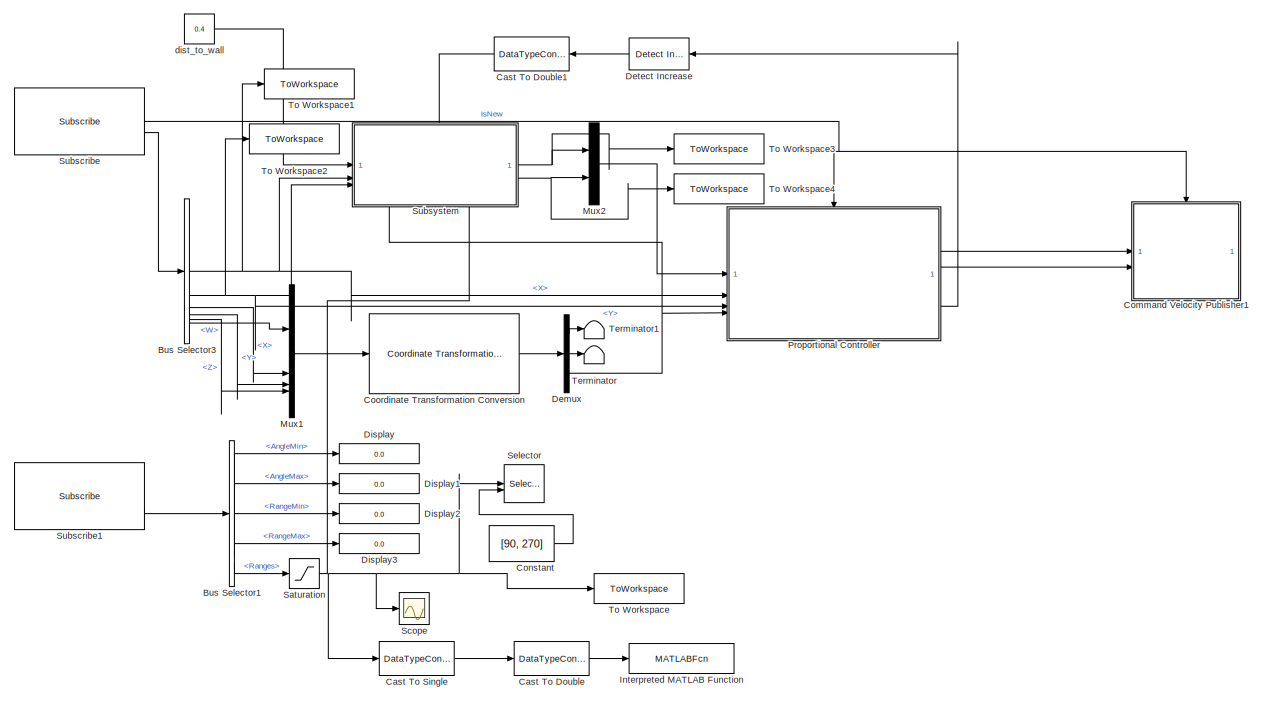
[diagram: root canvas - part 1/2, most of the canvas]
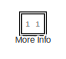
[diagram: root canvas - part 2/2, top right region]
MODEL slx_dae94b6c5f3b
KIND model
CONFIG AbsTol = auto
CONFIG EnableMultiTasking = off
CONFIG FixedStep = 0.1
CONFIG MaxStep = auto
CONFIG MinStep = auto
CONFIG RelTol = 1e-3
CONFIG SampleTimeConstraint = Unconstrained
CONFIG SolverName = FixedStepAuto
CONFIG StartTime = 0.0
CONFIG StopTime = inf
WORKSPACE source: mxarray member
WORKSPACE SL_ROS_VariableLengthArrays_MaxSizes: object (value not decoded)
BLOCK [BusSelector] Bus Selector1
  OutputSignals = AngleMin,AngleMax,RangeMin,RangeMax,Ranges
BLOCK [BusSelector] Bus Selector3
  OutputSignals = Pose.Pose.Position.X,Pose.Pose.Position.Y,Pose.Pose.Orientation.X,Pose.Pose.Orientation.Y,Pose.Pose.Orientation.Z,Pose.Pose.Orientation.W
BLOCK [DataTypeConversion] Cast To Double
  Commented = on
  OutDataTypeStr = double
  RndMeth = Floor
  SaturateOnIntegerOverflow = off
BLOCK [DataTypeConversion] Cast To Double1
  NameLocation = top
  OutDataTypeStr = double
  RndMeth = Floor
  SaturateOnIntegerOverflow = off
BLOCK [DataTypeConversion] Cast To Single
  Commented = on
  OutDataTypeStr = single
  RndMeth = Floor
  SaturateOnIntegerOverflow = off
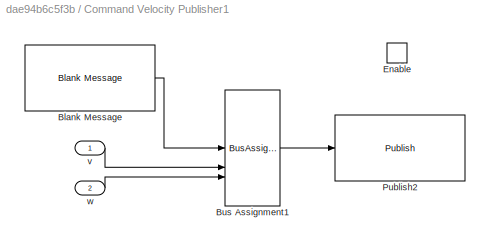
BLOCK [SubSystem] Command Velocity Publisher1
BLOCK [Reference] Command Velocity Publisher1/Blank Message  REF=robotlib/Blank Message
  SourceBlock = robotlib/Blank Message
  SourceType = ROS Blank Message
BLOCK [BusAssignment] Command Velocity Publisher1/Bus Assignment1
  AssignedSignals = Linear.X,Angular.Z
  DialogController = Simulink.DDGSource_BusAssignment
BLOCK [EnablePort] Command Velocity Publisher1/Enable
BLOCK [Reference] Command Velocity Publisher1/Publish2  REF=robotlib/Publish
  AttributesFormatString = %<messageType>
  SourceBlock = robotlib/Publish
  SourceType = ROS Publish
BLOCK [Inport] Command Velocity Publisher1/v
BLOCK [Inport] Command Velocity Publisher1/w
  Port = 2
BLOCK [Constant] Constant
  Commented = on
  Value = [90, 270]
BLOCK [Reference] Coordinate Transformation Conversion  REF=robotcorelib/Coordinate Transformation Conversion
  LibrarySourceBlock = roslib/Utilities/Coordinate Transformation Conversion
  SourceBlock = robotcorelib/Coordinate Transformation Conversion
  SourceType = robotics.slcore.internal.block.CoordinateTransformationConversion
BLOCK [Demux] Demux
  Outputs = 3
BLOCK [Reference] Detect Increase  REF=simulink/Logic and Bit
Operations/Detect
Increase
  NameLocation = top
  SourceBlock = simulink/Logic and Bit\nOperations/Detect\nIncrease
  SourceType = Detect Increase
BLOCK [Display] Display
  Decimation = 1
BLOCK [Display] Display1
  Decimation = 1
BLOCK [Display] Display2
  Decimation = 1
BLOCK [Display] Display3
  Decimation = 1
BLOCK [MATLABFcn] Interpreted MATLAB Function
  Commented = on
  MATLABFcn = plot_lidar2(1, u(1:end))
BLOCK [SubSystem] More Info
  OpenFcn = showdemo(bdroot(gcb))
BLOCK [Mux] Mux1
  DisplayOption = bar
BLOCK [Mux] Mux2
  DisplayOption = bar
  Inputs = 2
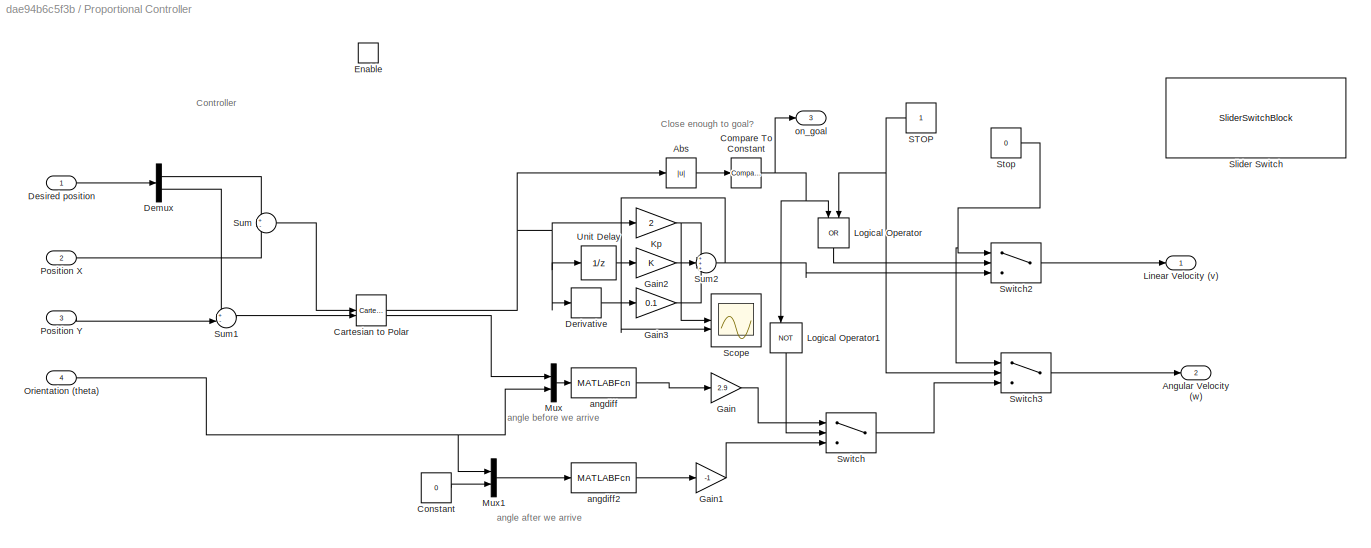
BLOCK [SubSystem] Proportional Controller
BLOCK [Abs] Proportional Controller/Abs
  SaturateOnIntegerOverflow = off
BLOCK [Outport] Proportional Controller/Angular Velocity (w)
  Port = 2
  VectorParamsAs1DForOutWhenUnconnected = off
BLOCK [Reference] Proportional Controller/Cartesian to Polar  REF=simulink_extras/Transformations/Cartesian to
Polar
  SourceBlock = simulink_extras/Transformations/Cartesian to\nPolar
  SourceType = Cart2Polar
BLOCK [Reference] Proportional Controller/Compare To Constant  REF=simulink/Logic and Bit
Operations/Compare
To Constant
  SourceBlock = simulink/Logic and Bit\nOperations/Compare\nTo Constant
  SourceType = Compare To Constant
BLOCK [Constant] Proportional Controller/Constant
  Value = 0
BLOCK [Demux] Proportional Controller/Demux
  Outputs = 2
BLOCK [Derivative] Proportional Controller/Derivative
BLOCK [Inport] Proportional Controller/Desired position
BLOCK [EnablePort] Proportional Controller/Enable
BLOCK [Gain] Proportional Controller/Gain
  Gain = 2.9
BLOCK [Gain] Proportional Controller/Gain1
  Gain = -1
BLOCK [Gain] Proportional Controller/Gain2
BLOCK [Gain] Proportional Controller/Gain3
  Gain = 0.1
BLOCK [Gain] Proportional Controller/Kp
  Gain = 2
BLOCK [Outport] Proportional Controller/Linear Velocity (v)
  VectorParamsAs1DForOutWhenUnconnected = off
BLOCK [Logic] Proportional Controller/Logical Operator
  AllPortsSameDT = off
  NameLocation = left
  Operator = OR
  OutDataTypeStr = boolean
BLOCK [Logic] Proportional Controller/Logical Operator1
  AllPortsSameDT = off
  NameLocation = left
  Operator = NOT
  OutDataTypeStr = boolean
BLOCK [Mux] Proportional Controller/Mux
  DisplayOption = bar
  Inputs = 2
BLOCK [Mux] Proportional Controller/Mux1
  DisplayOption = bar
  Inputs = 2
BLOCK [Inport] Proportional Controller/Orientation (theta)
  Port = 4
BLOCK [Inport] Proportional Controller/Position X
  Port = 2
BLOCK [Inport] Proportional Controller/Position Y
  Port = 3
BLOCK [Constant] Proportional Controller/STOP 
  NameLocation = top
BLOCK [Scope] Proportional Controller/Scope
  Floating = off
  NumInputPorts = 2
  ScopeSpecificationString = Simulink.scopes.TimeScopeBlockCfg('CurrentConfiguration', extmgr.ConfigurationSet(extmgr.Configuration('Core','General UI',true),extmgr.Configuration('Core','Source UI',true),extmgr.Configuration('Sources','WiredSimulink',true,'DataLoggingVariableName','ScopeData1'),extmgr.Configuration('Visuals','Time Domain',true,'SerializedDisplays',{struct('MinYLimReal','0.47367','MaxYLimReal','0.78968','YLabe...<+1416ch>
BLOCK [SliderSwitchBlock] Proportional Controller/Slider Switch
BLOCK [Constant] Proportional Controller/Stop
  Value = 0
BLOCK [Sum] Proportional Controller/Sum
  Inputs = +-
BLOCK [Sum] Proportional Controller/Sum1
  Inputs = +-|
BLOCK [Sum] Proportional Controller/Sum2
  Inputs = +++
BLOCK [Switch] Proportional Controller/Switch
  Criteria = u2 > Threshold
  InputSameDT = off
  SaturateOnIntegerOverflow = off
BLOCK [Switch] Proportional Controller/Switch2
  Criteria = u2 ~= 0
  InputSameDT = off
  SaturateOnIntegerOverflow = off
BLOCK [Switch] Proportional Controller/Switch3
  Criteria = u2 ~= 0
  InputSameDT = off
  SaturateOnIntegerOverflow = off
BLOCK [UnitDelay] Proportional Controller/Unit Delay
  HasFrameUpgradeWarning = on
  SampleTime = -1
BLOCK [MATLABFcn] Proportional Controller/angdiff
  MATLABFcn = angdiff(u(2), u(1))
BLOCK [MATLABFcn] Proportional Controller/angdiff2
  MATLABFcn = angdiff(u(2), u(1))
BLOCK [Outport] Proportional Controller/on_goal
  Port = 3
BLOCK [Saturate] Saturation
  LinearizeAsGain = off
  LowerLimit = -20
  UpperLimit = 3.5
BLOCK [Scope] Scope
  Commented = on
  Floating = off
  NumInputPorts = 1
  ScopeSpecificationString = Simulink.scopes.TimeScopeBlockCfg('CurrentConfiguration', extmgr.ConfigurationSet(extmgr.Configuration('Core','General UI',true),extmgr.Configuration('Core','Source UI',true),extmgr.Configuration('Sources','WiredSimulink',true,'DataLoggingVariableName','ScopeData1'),extmgr.Configuration('Visuals','Time Domain',true,'SerializedDisplays',{struct('MinYLimReal','-0.4375','MaxYLimReal','3.9375','YLabel...<+7503ch>
BLOCK [Selector] Selector
  Commented = on
  IndexOptions = Index vector (port)
  Indices = 1
  InputPortWidth = 360
  OutputSizes = 1
BLOCK [Reference] Subscribe  REF=robotlib/Subscribe
  SourceBlock = robotlib/Subscribe
  SourceType = ROS Subscribe
BLOCK [Reference] Subscribe1  REF=robotlib/Subscribe
  SourceBlock = robotlib/Subscribe
  SourceType = ROS Subscribe
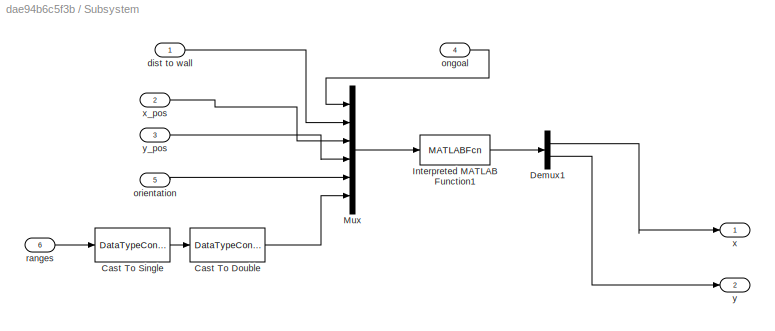
BLOCK [SubSystem] Subsystem
  PortSchema = {"entries":[{"content":{"sides":[{"content":{"connectorIds":["In1","In2","In3"]},"type":"ConnectorPlacement.EquallySpacedRectSide","uuid":"7cb6d40d-2efe-4780-8c1a-112a9ad83017"},{"content":{"connectorIds":["Out1","Out2"],"side":"RIGHT"},"type":"ConnectorPlacement.EquallySpacedRectSide","uuid":"02b09cc3-b311-4838-8923-be7e6a8e476d"},{"content":{"connectorIds":["In4"],"side":"TOP"},"type":"Connector...<+419ch>
BLOCK [DataTypeConversion] Subsystem/Cast To Double
  OutDataTypeStr = double
  RndMeth = Floor
  SaturateOnIntegerOverflow = off
BLOCK [DataTypeConversion] Subsystem/Cast To Single
  OutDataTypeStr = single
  RndMeth = Floor
  SaturateOnIntegerOverflow = off
BLOCK [Demux] Subsystem/Demux1
  Outputs = 2
BLOCK [MATLABFcn] Subsystem/Interpreted MATLAB Function1
  MATLABFcn = wall_traj(u(1), u(2), u(3), u(4), u(5), u(6:end))
BLOCK [Mux] Subsystem/Mux
  DisplayOption = bar
  Inputs = 6
BLOCK [Inport] Subsystem/dist to wall
BLOCK [Inport] Subsystem/ongoal
  Port = 4
BLOCK [Inport] Subsystem/orientation
  Port = 5
BLOCK [Inport] Subsystem/ranges
  Port = 6
BLOCK [Outport] Subsystem/x
BLOCK [Inport] Subsystem/x_pos
  Port = 2
BLOCK [Outport] Subsystem/y
  Port = 2
BLOCK [Inport] Subsystem/y_pos
  Port = 3
BLOCK [Terminator] Terminator
BLOCK [Terminator] Terminator1
BLOCK [ToWorkspace] To Workspace
  Commented = on
  FixptAsFi = on
  MaxDataPoints = inf
  SampleTime = -1
  SaveFormat = Timeseries
  VariableName = simout
BLOCK [ToWorkspace] To Workspace1
  FixptAsFi = on
  MaxDataPoints = inf
  SampleTime = -1
  SaveFormat = Timeseries
  VariableName = x
BLOCK [ToWorkspace] To Workspace2
  FixptAsFi = on
  MaxDataPoints = inf
  SampleTime = -1
  SaveFormat = Timeseries
  VariableName = y
BLOCK [ToWorkspace] To Workspace3
  FixptAsFi = on
  MaxDataPoints = inf
  SampleTime = -1
  SaveFormat = Timeseries
  VariableName = points_x
BLOCK [ToWorkspace] To Workspace4
  FixptAsFi = on
  MaxDataPoints = inf
  SampleTime = -1
  SaveFormat = Timeseries
  VariableName = points_y
BLOCK [Constant] dist_to_wall
  Value = 0.4
ANNOTATION Proportional Controller: Controller
ANNOTATION Proportional Controller: Close enough to goal?
ANNOTATION Proportional Controller: angle after we arrive
ANNOTATION Proportional Controller: angle before we arrive
LINE Bus Selector1:1 -> Display:1
LINE Bus Selector1:2 -> Display1:1
LINE Bus Selector1:3 -> Display2:1
LINE Bus Selector1:4 -> Display3:1
LINE Bus Selector1:5 -> Saturation:1
NET Bus Selector3:1 -> Proportional Controller:2, Subsystem:2, To Workspace1:1
NET Bus Selector3:2 -> Proportional Controller:3, Subsystem:3, To Workspace2:1
LINE Bus Selector3:3 -> Mux1:2
LINE Bus Selector3:4 -> Mux1:3
LINE Bus Selector3:5 -> Mux1:4
LINE Bus Selector3:6 -> Mux1:1
LINE Cast To Double1:1 -> Subsystem:4
LINE Cast To Double:1 -> Interpreted MATLAB Function:1
LINE Cast To Single:1 -> Cast To Double:1
LINE Command Velocity Publisher1/Blank Message:1 -> Command Velocity Publisher1/Bus Assignment1:1
LINE Command Velocity Publisher1/Bus Assignment1:1 -> Command Velocity Publisher1/Publish2:1
LINE Command Velocity Publisher1/v:1 -> Command Velocity Publisher1/Bus Assignment1:2
LINE Command Velocity Publisher1/w:1 -> Command Velocity Publisher1/Bus Assignment1:3
LINE Constant:1 -> Selector:2
LINE Coordinate Transformation Conversion:1 -> Demux:1
LINE Demux:1 -> Terminator1:1
LINE Demux:2 -> Terminator:1
NET Demux:3 -> Proportional Controller:4, Subsystem:5
LINE Detect Increase:1 -> Cast To Double1:1
LINE Mux1:1 -> Coordinate Transformation Conversion:1
LINE Mux2:1 -> Proportional Controller:1
LINE Proportional Controller/Abs:1 -> Proportional Controller/Compare To Constant:1
NET Proportional Controller/Cartesian to Polar:1 -> Proportional Controller/Abs:1, Proportional Controller/Derivative:1, Proportional Controller/Kp:1, Proportional Controller/Unit Delay:1
LINE Proportional Controller/Cartesian to Polar:2 -> Proportional Controller/Mux:1
NET Proportional Controller/Compare To Constant:1 -> Proportional Controller/Logical Operator1:1, Proportional Controller/Logical Operator:1, Proportional Controller/on_goal:1
LINE Proportional Controller/Constant:1 -> Proportional Controller/Mux1:2
LINE Proportional Controller/Demux:1 -> Proportional Controller/Sum:1
LINE Proportional Controller/Demux:2 -> Proportional Controller/Sum1:1
LINE Proportional Controller/Derivative:1 -> Proportional Controller/Gain3:1
LINE Proportional Controller/Desired position:1 -> Proportional Controller/Demux:1
LINE Proportional Controller/Gain1:1 -> Proportional Controller/Switch:3
LINE Proportional Controller/Gain2:1 -> Proportional Controller/Sum2:2
LINE Proportional Controller/Gain3:1 -> Proportional Controller/Sum2:3
LINE Proportional Controller/Gain:1 -> Proportional Controller/Switch:1
NET Proportional Controller/Kp:1 -> Proportional Controller/Scope:1, Proportional Controller/Sum2:1
LINE Proportional Controller/Logical Operator1:1 -> Proportional Controller/Switch:2
LINE Proportional Controller/Logical Operator:1 -> Proportional Controller/Switch2:2
LINE Proportional Controller/Mux1:1 -> Proportional Controller/angdiff2:1
LINE Proportional Controller/Mux:1 -> Proportional Controller/angdiff:1
NET Proportional Controller/Orientation (theta):1 -> Proportional Controller/Mux1:1, Proportional Controller/Mux:2
LINE Proportional Controller/Position X:1 -> Proportional Controller/Sum:2
LINE Proportional Controller/Position Y:1 -> Proportional Controller/Sum1:2
NET Proportional Controller/STOP :1 -> Proportional Controller/Logical Operator:2, Proportional Controller/Switch3:2
NET Proportional Controller/Stop:1 -> Proportional Controller/Switch2:1, Proportional Controller/Switch3:1
LINE Proportional Controller/Sum1:1 -> Proportional Controller/Cartesian to Polar:2
NET Proportional Controller/Sum2:1 -> Proportional Controller/Scope:2, Proportional Controller/Switch2:3
LINE Proportional Controller/Sum:1 -> Proportional Controller/Cartesian to Polar:1
LINE Proportional Controller/Switch2:1 -> Proportional Controller/Linear Velocity (v):1
LINE Proportional Controller/Switch3:1 -> Proportional Controller/Angular Velocity (w):1
LINE Proportional Controller/Switch:1 -> Proportional Controller/Switch3:3
LINE Proportional Controller/Unit Delay:1 -> Proportional Controller/Gain2:1
LINE Proportional Controller/angdiff2:1 -> Proportional Controller/Gain1:1
LINE Proportional Controller/angdiff:1 -> Proportional Controller/Gain:1
LINE Proportional Controller:1 -> Command Velocity Publisher1:1
LINE Proportional Controller:2 -> Command Velocity Publisher1:2
LINE Proportional Controller:3 -> Detect Increase:1
NET Saturation:1 -> Cast To Single:1, Scope:1, Selector:1, Subsystem:6, To Workspace:1
LINE Subscribe1:2 -> Bus Selector1:1
NET Subscribe:1 -> Command Velocity Publisher1:enable, Proportional Controller:enable
LINE Subscribe:2 -> Bus Selector3:1
LINE Subsystem/Cast To Double:1 -> Subsystem/Mux:6
LINE Subsystem/Cast To Single:1 -> Subsystem/Cast To Double:1
LINE Subsystem/Demux1:1 -> Subsystem/x:1
LINE Subsystem/Demux1:2 -> Subsystem/y:1
LINE Subsystem/Interpreted MATLAB Function1:1 -> Subsystem/Demux1:1
LINE Subsystem/Mux:1 -> Subsystem/Interpreted MATLAB Function1:1
LINE Subsystem/dist to wall:1 -> Subsystem/Mux:2
LINE Subsystem/ongoal:1 -> Subsystem/Mux:1
LINE Subsystem/orientation:1 -> Subsystem/Mux:5
LINE Subsystem/ranges:1 -> Subsystem/Cast To Single:1
LINE Subsystem/x_pos:1 -> Subsystem/Mux:3
LINE Subsystem/y_pos:1 -> Subsystem/Mux:4
NET Subsystem:1 -> Mux2:1, To Workspace3:1
NET Subsystem:2 -> Mux2:2, To Workspace4:1
LINE dist_to_wall:1 -> Subsystem:1
note: NET lines group one-source signal fan-out (src -> all destinations, sorted); 1:1 wires keep LINE
